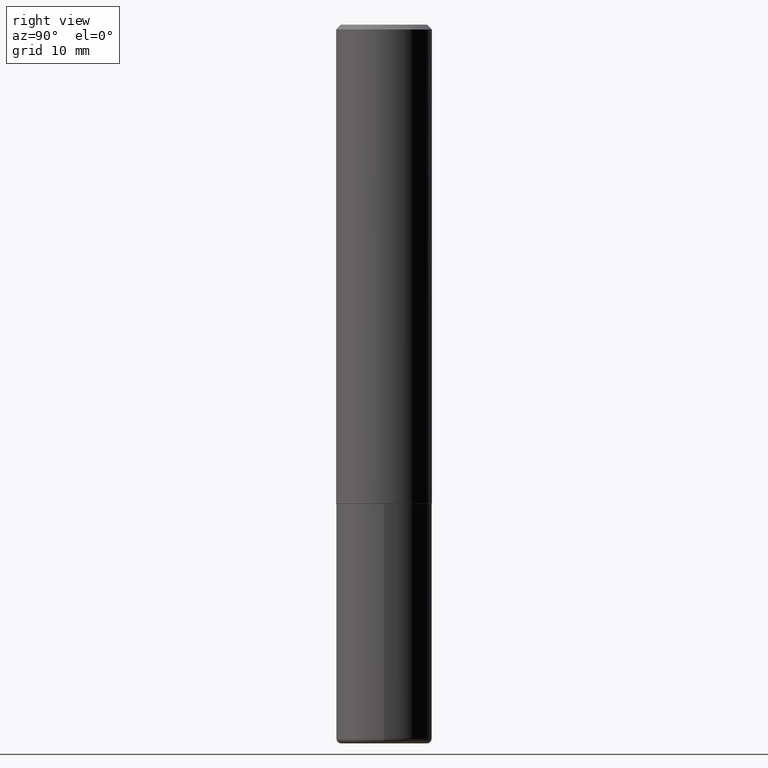
[diagram: clean part render]
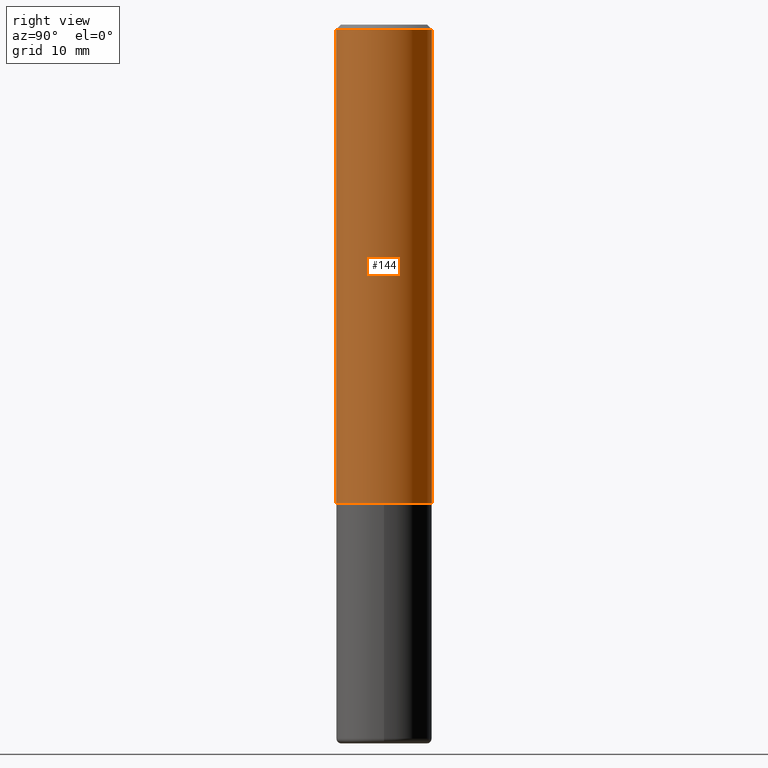
[diagram: same view with one face highlighted and labeled with its STEP entity id]
A machine part, right view. The second image highlights one B-rep face of the part: STEP entity #144.
In plain terms, the highlighted cylindrical surface (partial cylindrical patch) has radius 5 mm, axis along (-0, 0, 1).
Its self-contained STEP definition (entity closure, byte-faithful):
#1 = CARTESIAN_POINT ( 'NONE',  ( 4.811066445251554069E-29, -6.870052949640732965E-15, -1.967499999999999805 ) ) ;
#2 = EDGE_CURVE ( 'NONE', #211, #388, #187, .T. ) ;
#14 = VECTOR ( 'NONE', #213, 39.37007874015748143 ) ;
#22 = FACE_OUTER_BOUND ( 'NONE', #42, .T. ) ;
#42 = EDGE_LOOP ( 'NONE', ( #313, #361, #129, #109 ) ) ;
#52 = DIRECTION ( 'NONE',  ( -2.445268841296851437E-29, 3.491767699944464545E-15, 1.000000000000000000 ) ) ;
#61 = CARTESIAN_POINT ( 'NONE',  ( 1.398703375343757985E-15, 0.1968500000000001360, -6.873544717340683232E-16 ) ) ;
#68 = VERTEX_POINT ( 'NONE', #308 ) ;
#83 = DIRECTION ( 'NONE',  ( -6.982962677686265133E-15, -1.000000000000000000, 3.491137977679279029E-15 ) ) ;
#91 = DIRECTION ( 'NONE',  ( -6.982962677686265922E-15, -1.000000000000000000, 4.163344669033670112E-15 ) ) ;
#103 = EDGE_CURVE ( 'NONE', #388, #68, #165, .T. ) ;
#109 = ORIENTED_EDGE ( 'NONE', *, *, #2, .F. ) ;
#112 = CYLINDRICAL_SURFACE ( 'NONE', #355, 0.1968500000000001360 ) ;
#123 = DIRECTION ( 'NONE',  ( -2.445268841296851437E-29, 3.491767699944464940E-15, 1.000000000000000000 ) ) ;
#129 = ORIENTED_EDGE ( 'NONE', *, *, #103, .F. ) ;
#143 = AXIS2_PLACEMENT_3D ( 'NONE', #251, #380, #83 ) ;
#144 = ADVANCED_FACE ( 'NONE', ( #22 ), #112, .T. ) ;
#146 = CARTESIAN_POINT ( 'NONE',  ( 0.000000000000000000, 0.000000000000000000, 0.000000000000000000 ) ) ;
#158 = AXIS2_PLACEMENT_3D ( 'NONE', #1, #415, #91 ) ;
#165 = CIRCLE ( 'NONE', #143, 0.1968500000000000527 ) ;
#172 = CIRCLE ( 'NONE', #158, 0.1968500000000002470 ) ;
#187 = LINE ( 'NONE', #414, #200 ) ;
#191 = CARTESIAN_POINT ( 'NONE',  ( 1.398703375343782440E-15, 0.1968499999999933914, -1.967500000000000471 ) ) ;
#200 = VECTOR ( 'NONE', #123, 39.37007874015748143 ) ;
#203 = EDGE_CURVE ( 'NONE', #239, #68, #381, .T. ) ;
#211 = VERTEX_POINT ( 'NONE', #217 ) ;
#213 = DIRECTION ( 'NONE',  ( -2.445268841296851437E-29, 3.491767699944464940E-15, 1.000000000000000000 ) ) ;
#217 = CARTESIAN_POINT ( 'NONE',  ( -1.374596203102495065E-15, -0.1968500000000071026, -1.967499999999998916 ) ) ;
#225 = CARTESIAN_POINT ( 'NONE',  ( -1.350489030861325626E-15, -0.1968500000000001082, -0.01999999999999935510 ) ) ;
#239 = VERTEX_POINT ( 'NONE', #191 ) ;
#246 = DIRECTION ( 'NONE',  ( -6.982962677686265922E-15, -1.000000000000000000, 3.491767699944464545E-15 ) ) ;
#251 = CARTESIAN_POINT ( 'NONE',  ( 4.890537682593712927E-31, -6.983535399888942699E-17, -0.02000000000000004205 ) ) ;
#308 = CARTESIAN_POINT ( 'NONE',  ( 1.374596203102542200E-15, 0.1968499999999999694, -0.02000000000000072900 ) ) ;
#313 = ORIENTED_EDGE ( 'NONE', *, *, #348, .T. ) ;
#348 = EDGE_CURVE ( 'NONE', #211, #239, #172, .T. ) ;
#355 = AXIS2_PLACEMENT_3D ( 'NONE', #146, #52, #246 ) ;
#361 = ORIENTED_EDGE ( 'NONE', *, *, #203, .T. ) ;
#380 = DIRECTION ( 'NONE',  ( -2.445268841296851437E-29, 3.491767699944464545E-15, 1.000000000000000000 ) ) ;
#381 = LINE ( 'NONE', #61, #14 ) ;
#388 = VERTEX_POINT ( 'NONE', #225 ) ;
#414 = CARTESIAN_POINT ( 'NONE',  ( -1.374596203102542397E-15, -0.1968500000000001360, 6.873544717340683232E-16 ) ) ;
#415 = DIRECTION ( 'NONE',  ( -2.445268841296851437E-29, 3.491767699944464545E-15, 1.000000000000000000 ) ) ;